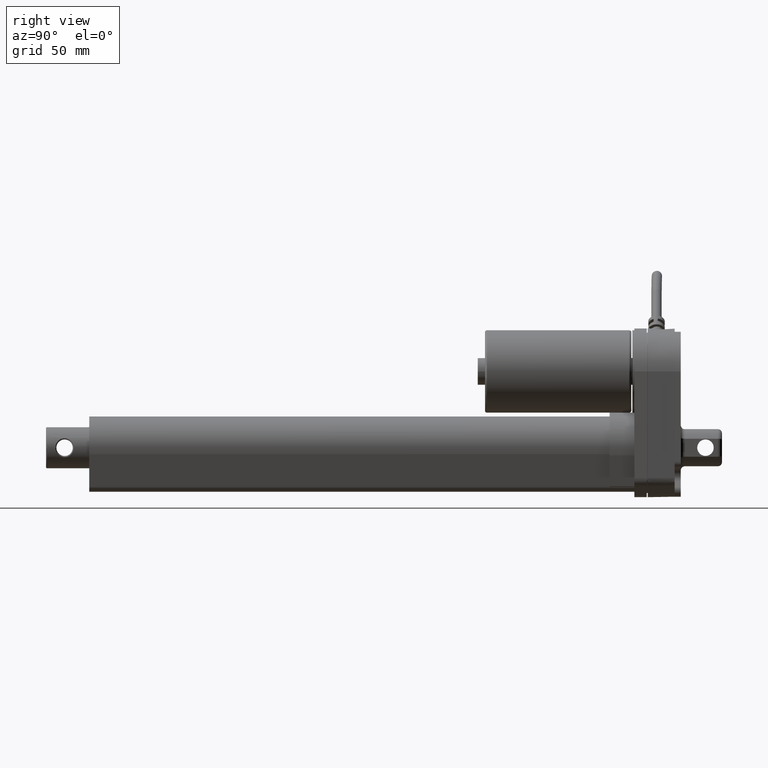
[diagram: clean part render]
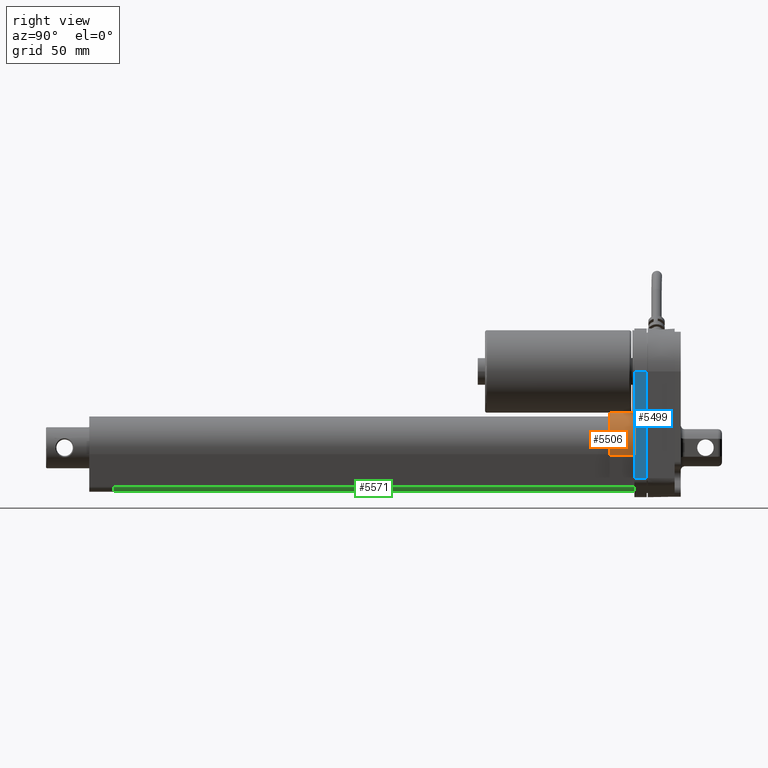
[diagram: same view with three faces highlighted in distinct colors, each labeled with its STEP entity id]
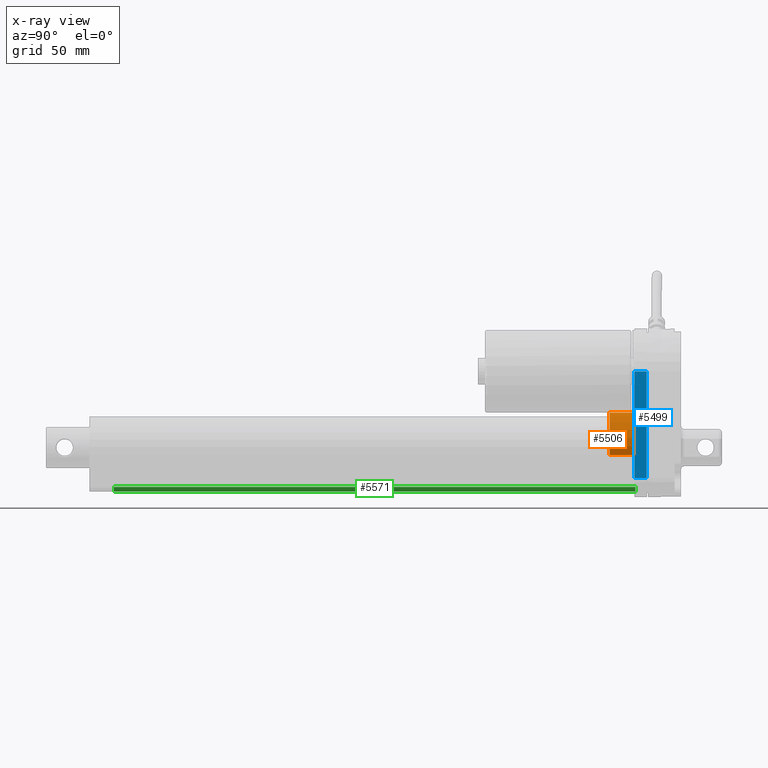
[diagram: x-ray of the same camera — body ghosted, the three highlighted faces saturated]
A machine part, right view with three faces highlighted in distinct colors.
The next image is the same camera in x-ray (body ghosted, the three faces saturated) — at least one of them is partly hidden behind the body in this view.
Their STEP definitions:

[orange] entity #5506 — the highlighted cylindrical surface (partial cylindrical patch) has radius 18 mm, axis along (0, -1, 0).
#355=LINE('',#8315,#812);
#438=LINE('',#8564,#895);
#812=VECTOR('',#6610,1000.);
#895=VECTOR('',#6857,1000.);
#1510=ORIENTED_EDGE('',*,*,#3060,.F.);
#1511=ORIENTED_EDGE('',*,*,#3062,.T.);
#1512=ORIENTED_EDGE('',*,*,#2935,.F.);
#1513=ORIENTED_EDGE('',*,*,#2995,.F.);
#2935=EDGE_CURVE('',#3748,#3749,#355,.T.);
#2995=EDGE_CURVE('',#3791,#3748,#4293,.T.);
#3060=EDGE_CURVE('',#3833,#3791,#438,.T.);
#3062=EDGE_CURVE('',#3833,#3749,#4314,.T.);
#3748=VERTEX_POINT('',#8314);
#3749=VERTEX_POINT('',#8316);
#3791=VERTEX_POINT('',#8438);
#3833=VERTEX_POINT('',#8565);
#4293=CIRCLE('',#5958,18.);
#4314=CIRCLE('',#5999,18.);
#4590=EDGE_LOOP('',(#1510,#1511,#1512,#1513));
#4989=FACE_BOUND('',#4590,.T.);
#5355=CYLINDRICAL_SURFACE('',#5998,18.);
#5506=ADVANCED_FACE('',(#4989),#5355,.T.);
#5958=AXIS2_PLACEMENT_3D('',#8439,#6733,#6734);
#5998=AXIS2_PLACEMENT_3D('',#8567,#6859,#6860);
#5999=AXIS2_PLACEMENT_3D('',#8568,#6861,#6862);
#6610=DIRECTION('',(0.,1.,0.));
#6733=DIRECTION('',(0.,-1.,0.));
#6734=DIRECTION('',(0.,0.,-1.));
#6857=DIRECTION('',(0.,-1.,0.));
#6859=DIRECTION('',(0.,-1.,0.));
#6860=DIRECTION('',(0.,0.,-1.));
#6861=DIRECTION('',(0.,-1.,0.));
#6862=DIRECTION('',(0.,0.,-1.));
#8314=CARTESIAN_POINT('',(5.97475460732908,-60.,-0.0205327709553989));
#8315=CARTESIAN_POINT('',(5.97475460732901,-54.,-0.0205327709553588));
#8316=CARTESIAN_POINT('',(5.97475460732908,-48.,-0.0205327709554407));
#8438=CARTESIAN_POINT('',(17.6066568132097,-60.,-20.7424104347206));
#8439=CARTESIAN_POINT('',(0.,-60.,-17.));
#8564=CARTESIAN_POINT('',(17.6066568132085,-54.,-20.7424104347197));
#8565=CARTESIAN_POINT('',(17.6066568132097,-48.,-20.7424104347206));
#8567=CARTESIAN_POINT('',(0.,-48.,-17.));
#8568=CARTESIAN_POINT('',(0.,-48.,-17.));

[blue] entity #5499 — the highlighted planar face has unit normal (1, 0, 0).
#167=PLANE('',#5987);
#353=LINE('',#8306,#810);
#428=LINE('',#8538,#885);
#429=LINE('',#8540,#886);
#430=LINE('',#8542,#887);
#810=VECTOR('',#6602,1000.);
#885=VECTOR('',#6827,1000.);
#886=VECTOR('',#6828,1000.);
#887=VECTOR('',#6829,1000.);
#1480=ORIENTED_EDGE('',*,*,#3046,.T.);
#1481=ORIENTED_EDGE('',*,*,#3047,.T.);
#1482=ORIENTED_EDGE('',*,*,#3048,.T.);
#1483=ORIENTED_EDGE('',*,*,#2931,.F.);
#2931=EDGE_CURVE('',#3744,#3745,#353,.T.);
#3046=EDGE_CURVE('',#3744,#3827,#428,.T.);
#3047=EDGE_CURVE('',#3827,#3828,#429,.T.);
#3048=EDGE_CURVE('',#3828,#3745,#430,.T.);
#3744=VERTEX_POINT('',#8305);
#3745=VERTEX_POINT('',#8307);
#3827=VERTEX_POINT('',#8539);
#3828=VERTEX_POINT('',#8541);
#4583=EDGE_LOOP('',(#1480,#1481,#1482,#1483));
#4982=FACE_BOUND('',#4583,.T.);
#5499=ADVANCED_FACE('',(#4982),#167,.T.);
#5987=AXIS2_PLACEMENT_3D('',#8537,#6825,#6826);
#6602=DIRECTION('',(0.,1.,0.));
#6825=DIRECTION('',(1.,0.,0.));
#6826=DIRECTION('',(0.,0.,-1.));
#6827=DIRECTION('',(0.,0.,-1.));
#6828=DIRECTION('',(0.,1.,0.));
#6829=DIRECTION('',(0.,0.,1.));
#8305=CARTESIAN_POINT('',(21.,-48.,20.));
#8306=CARTESIAN_POINT('',(21.,-45.,20.));
#8307=CARTESIAN_POINT('',(21.,-42.,20.));
#8537=CARTESIAN_POINT('',(21.,-48.1347564524,21.0353414964));
#8538=CARTESIAN_POINT('',(21.,-48.,0.00880398853500552));
#8539=CARTESIAN_POINT('',(21.,-48.,-31.76707481981));
#8540=CARTESIAN_POINT('',(21.,-45.,-31.76707481981));
#8541=CARTESIAN_POINT('',(21.,-42.,-31.76707481981));
#8542=CARTESIAN_POINT('',(21.,-42.,0.00864809918000795));

[green] entity #5571 — the highlighted cylindrical surface (edge-blend (fillet) strip) has radius 3 mm, axis along (0, -1, 0).
#523=LINE('',#8832,#980);
#527=LINE('',#8841,#984);
#980=VECTOR('',#7160,1000.);
#984=VECTOR('',#7166,1000.);
#1857=ORIENTED_EDGE('',*,*,#3192,.T.);
#1858=ORIENTED_EDGE('',*,*,#3193,.F.);
#1859=ORIENTED_EDGE('',*,*,#3188,.F.);
#1860=ORIENTED_EDGE('',*,*,#3194,.T.);
#3188=EDGE_CURVE('',#3907,#3908,#523,.T.);
#3192=EDGE_CURVE('',#3911,#3912,#527,.T.);
#3193=EDGE_CURVE('',#3908,#3912,#4357,.T.);
#3194=EDGE_CURVE('',#3907,#3911,#4358,.T.);
#3907=VERTEX_POINT('',#8833);
#3908=VERTEX_POINT('',#8834);
#3911=VERTEX_POINT('',#8842);
#3912=VERTEX_POINT('',#8843);
#4357=CIRCLE('',#6108,3.00000000000161);
#4358=CIRCLE('',#6109,3.000000000002);
#4665=EDGE_LOOP('',(#1857,#1858,#1859,#1860));
#5064=FACE_BOUND('',#4665,.T.);
#5377=CYLINDRICAL_SURFACE('',#6107,3.000000000002);
#5571=ADVANCED_FACE('',(#5064),#5377,.T.);
#6107=AXIS2_PLACEMENT_3D('',#8840,#7164,#7165);
#6108=AXIS2_PLACEMENT_3D('',#8844,#7167,#7168);
#6109=AXIS2_PLACEMENT_3D('',#8845,#7169,#7170);
#7160=DIRECTION('',(1.,0.,0.));
#7164=DIRECTION('',(1.,0.,0.));
#7165=DIRECTION('',(0.,0.,-1.));
#7166=DIRECTION('',(1.,0.,0.));
#7167=DIRECTION('',(1.,0.,0.));
#7168=DIRECTION('',(0.,0.,-1.));
#7169=DIRECTION('',(1.,0.,0.));
#7170=DIRECTION('',(0.,0.,-1.));
#8832=CARTESIAN_POINT('',(101.,-21.400000000002,-8.612631552368));
#8833=CARTESIAN_POINT('',(0.,-21.400000000001,-8.612631552368));
#8834=CARTESIAN_POINT('',(253.,-21.4000000000016,-8.612631552368));
#8840=CARTESIAN_POINT('',(0.,-18.4,-8.612631552368));
#8841=CARTESIAN_POINT('',(101.,-19.0237350724505,-11.5470743545723));
#8842=CARTESIAN_POINT('',(-7.80625564189563E-15,-19.0237350724517,-11.547074354572));
#8843=CARTESIAN_POINT('',(253.,-19.0237350724517,-11.547074354572));
#8844=CARTESIAN_POINT('',(253.,-18.4,-8.612631552368));
#8845=CARTESIAN_POINT('',(0.,-18.4,-8.612631552368));